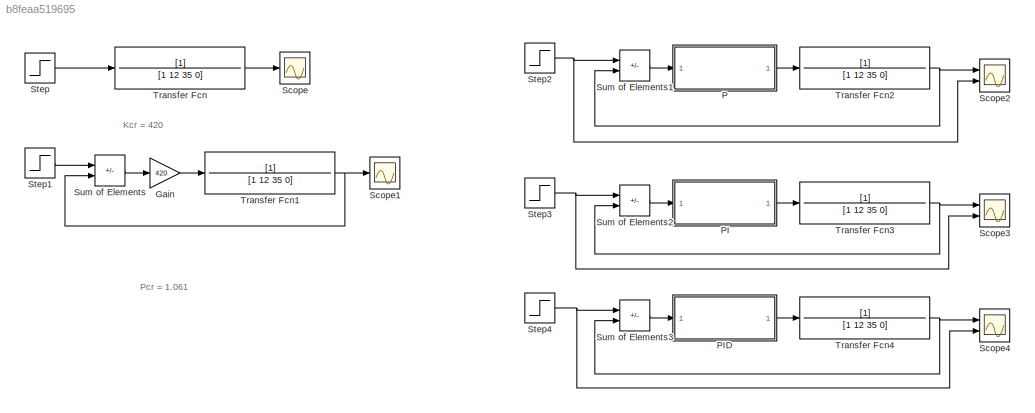
MODEL slx_b8feaa519695
KIND model
CONFIG AbsTol = auto
CONFIG EnableMultiTasking = off
CONFIG FixedStep = 0.001
CONFIG MaxStep = auto
CONFIG MinStep = auto
CONFIG RelTol = 1e-3
CONFIG SampleTimeConstraint = Unconstrained
CONFIG SolverName = ode4
CONFIG StartTime = 0.0
CONFIG StopTime = 100
BLOCK [Gain] Gain
  Gain = 420
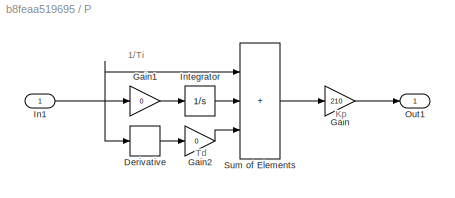
BLOCK [SubSystem] P
  Ports = [1, 1]
  RequestExecContextInheritance = off
BLOCK [Derivative] P/Derivative
BLOCK [Gain] P/Gain
  Gain = 210
BLOCK [Gain] P/Gain1
  Gain = 0
BLOCK [Gain] P/Gain2
  Gain = 0
BLOCK [Inport] P/In1
BLOCK [Integrator] P/Integrator
  Ports = [1, 1]
BLOCK [Outport] P/Out1
BLOCK [Sum] P/Sum of Elements
  IconShape = rectangular
  Inputs = +++
  Ports = [3, 1]
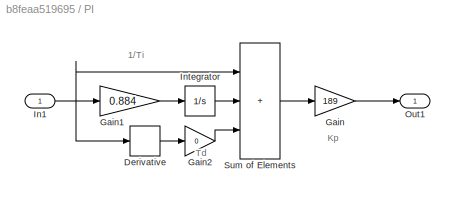
BLOCK [SubSystem] PI
  Ports = [1, 1]
  RequestExecContextInheritance = off
BLOCK [Derivative] PI/Derivative
BLOCK [Gain] PI/Gain
  Gain = 189
BLOCK [Gain] PI/Gain1
  Gain = 0.884
BLOCK [Gain] PI/Gain2
  Gain = 0
BLOCK [Inport] PI/In1
BLOCK [Integrator] PI/Integrator
  Ports = [1, 1]
BLOCK [Outport] PI/Out1
BLOCK [Sum] PI/Sum of Elements
  IconShape = rectangular
  Inputs = +++
  Ports = [3, 1]
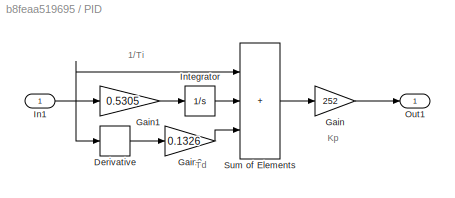
BLOCK [SubSystem] PID
  Ports = [1, 1]
  RequestExecContextInheritance = off
BLOCK [Derivative] PID/Derivative
BLOCK [Gain] PID/Gain
  Gain = 252
BLOCK [Gain] PID/Gain1
  Gain = 0.5305
BLOCK [Gain] PID/Gain2
  Gain = 0.1326
BLOCK [Inport] PID/In1
BLOCK [Integrator] PID/Integrator
  Ports = [1, 1]
BLOCK [Outport] PID/Out1
BLOCK [Sum] PID/Sum of Elements
  IconShape = rectangular
  Inputs = +++
  Ports = [3, 1]
BLOCK [Scope] Scope
  Floating = off
  NumInputPorts = 1
  Ports = [1]
  ScopeSpecificationString = Simulink.scopes.TimeScopeBlockCfg('CurrentConfiguration', extmgr.ConfigurationSet(extmgr.Configuration('Core','General UI',true),extmgr.Configuration('Core','Source UI',true),extmgr.Configuration('Sources','WiredSimulink',true,'DataLoggingVariableName','ScopeData1'),extmgr.Configuration('Visuals','Time Domain',true,'SerializedDisplays',{struct('MinYLimReal','-0.35592','MaxYLimReal','3.20327','YLab...<+1371ch>
BLOCK [Scope] Scope1
  Floating = off
  NumInputPorts = 1
  Ports = [1]
  ScopeSpecificationString = Simulink.scopes.TimeScopeBlockCfg('CurrentConfiguration', extmgr.ConfigurationSet(extmgr.Configuration('Core','General UI',true),extmgr.Configuration('Core','Source UI',true),extmgr.Configuration('Sources','WiredSimulink',true,'DataLoggingVariableName','ScopeData2'),extmgr.Configuration('Visuals','Time Domain',true,'SerializedDisplays',{struct('MinYLimReal','1.8281','MaxYLimReal','1.90907','YLabel...<+1765ch>
BLOCK [Scope] Scope2
  Floating = off
  NumInputPorts = 2
  Ports = [2]
  ScopeSpecificationString = Simulink.scopes.TimeScopeBlockCfg('CurrentConfiguration', extmgr.ConfigurationSet(extmgr.Configuration('Core','General UI',true),extmgr.Configuration('Core','Source UI',true),extmgr.Configuration('Sources','WiredSimulink',true,'DataLoggingVariableName','ScopeData3'),extmgr.Configuration('Visuals','Time Domain',true,'SerializedDisplays',{struct('MinYLimReal','-0.19358','MaxYLimReal','1.74225','YLab...<+1478ch>
BLOCK [Scope] Scope3
  Floating = off
  NumInputPorts = 2
  Ports = [2]
  ScopeSpecificationString = Simulink.scopes.TimeScopeBlockCfg('CurrentConfiguration', extmgr.ConfigurationSet(extmgr.Configuration('Core','General UI',true),extmgr.Configuration('Core','Source UI',true),extmgr.Configuration('Sources','WiredSimulink',true,'DataLoggingVariableName','ScopeData4'),extmgr.Configuration('Visuals','Time Domain',true,'SerializedDisplays',{struct('MinYLimReal','-10.43389','MaxYLimReal','1.15932','YLa...<+1455ch>
BLOCK [Scope] Scope4
  Floating = off
  NumInputPorts = 2
  Ports = [2]
  ScopeSpecificationString = Simulink.scopes.TimeScopeBlockCfg('CurrentConfiguration', extmgr.ConfigurationSet(extmgr.Configuration('Core','General UI',true),extmgr.Configuration('Core','Source UI',true),extmgr.Configuration('Sources','WiredSimulink',true),extmgr.Configuration('Visuals','Time Domain',true,'SerializedDisplays',{struct('MinYLimReal','-0.16798','MaxYLimReal','1.51178','YLabelReal','','MinYLimMag','0.00000','MaxY...<+1414ch>
BLOCK [Step] Step
  SampleTime = 0
  Time = 0
BLOCK [Step] Step1
  SampleTime = 0
  Time = 0
BLOCK [Step] Step2
  SampleTime = 0
  Time = 10
BLOCK [Step] Step3
  After = -5
  SampleTime = 0
BLOCK [Step] Step4
  SampleTime = 0
  Time = 0
BLOCK [Sum] Sum of Elements
  IconShape = rectangular
  Inputs = +-
  Ports = [2, 1]
BLOCK [Sum] Sum of Elements1
  IconShape = rectangular
  Inputs = +-
  Ports = [2, 1]
BLOCK [Sum] Sum of Elements2
  IconShape = rectangular
  Inputs = +-
  Ports = [2, 1]
BLOCK [Sum] Sum of Elements3
  IconShape = rectangular
  Inputs = +-
  Ports = [2, 1]
BLOCK [TransferFcn] Transfer Fcn
  Denominator = [1 12 35 0]
BLOCK [TransferFcn] Transfer Fcn1
  Denominator = [1 12 35 0]
BLOCK [TransferFcn] Transfer Fcn2
  Denominator = [1 12 35 0]
BLOCK [TransferFcn] Transfer Fcn3
  Denominator = [1 12 35 0]
BLOCK [TransferFcn] Transfer Fcn4
  Denominator = [1 12 35 0]
ANNOTATION (root): Kcr = 420
ANNOTATION (root): Pcr = 1.061
ANNOTATION P: 1/Ti
ANNOTATION P: Kp
ANNOTATION P: Td
ANNOTATION PI: 1/Ti
ANNOTATION PI: Kp
ANNOTATION PI: Td
ANNOTATION PID: 1/Ti
ANNOTATION PID: Kp
ANNOTATION PID: Td
LINE Gain:1 -> Transfer Fcn1:1
LINE P/Derivative:1 -> P/Gain2:1
LINE P/Gain1:1 -> P/Integrator:1
LINE P/Gain2:1 -> P/Sum of Elements:3
LINE P/Gain:1 -> P/Out1:1
NET P/In1:1 -> P/Derivative:1, P/Gain1:1, P/Sum of Elements:1
LINE P/Integrator:1 -> P/Sum of Elements:2
LINE P/Sum of Elements:1 -> P/Gain:1
LINE P:1 -> Transfer Fcn2:1
LINE PI/Derivative:1 -> PI/Gain2:1
LINE PI/Gain1:1 -> PI/Integrator:1
LINE PI/Gain2:1 -> PI/Sum of Elements:3
LINE PI/Gain:1 -> PI/Out1:1
NET PI/In1:1 -> PI/Derivative:1, PI/Gain1:1, PI/Sum of Elements:1
LINE PI/Integrator:1 -> PI/Sum of Elements:2
LINE PI/Sum of Elements:1 -> PI/Gain:1
LINE PI:1 -> Transfer Fcn3:1
LINE PID/Derivative:1 -> PID/Gain2:1
LINE PID/Gain1:1 -> PID/Integrator:1
LINE PID/Gain2:1 -> PID/Sum of Elements:3
LINE PID/Gain:1 -> PID/Out1:1
NET PID/In1:1 -> PID/Derivative:1, PID/Gain1:1, PID/Sum of Elements:1
LINE PID/Integrator:1 -> PID/Sum of Elements:2
LINE PID/Sum of Elements:1 -> PID/Gain:1
LINE PID:1 -> Transfer Fcn4:1
LINE Step1:1 -> Sum of Elements:1
NET Step2:1 -> Scope2:2, Sum of Elements1:1
NET Step3:1 -> Scope3:2, Sum of Elements2:1
NET Step4:1 -> Scope4:2, Sum of Elements3:1
LINE Step:1 -> Transfer Fcn:1
LINE Sum of Elements1:1 -> P:1
LINE Sum of Elements2:1 -> PI:1
LINE Sum of Elements3:1 -> PID:1
LINE Sum of Elements:1 -> Gain:1
NET Transfer Fcn1:1 -> Scope1:1, Sum of Elements:2
NET Transfer Fcn2:1 -> Scope2:1, Sum of Elements1:2
NET Transfer Fcn3:1 -> Scope3:1, Sum of Elements2:2
NET Transfer Fcn4:1 -> Scope4:1, Sum of Elements3:2
LINE Transfer Fcn:1 -> Scope:1
note: NET lines group one-source signal fan-out (src -> all destinations, sorted); 1:1 wires keep LINE
